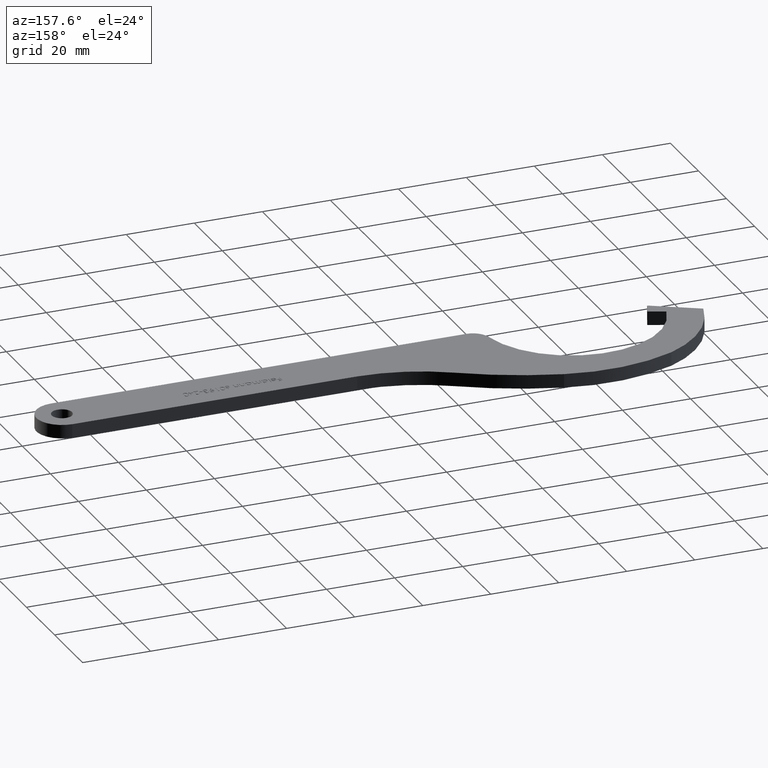
[diagram: clean part render]
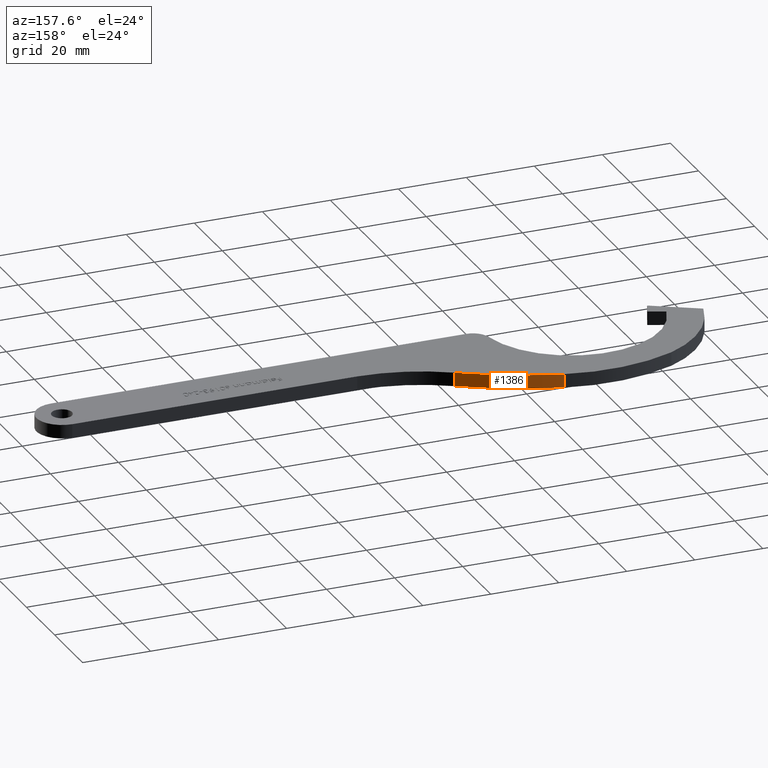
[diagram: same view with one face highlighted and labeled with its STEP entity id]
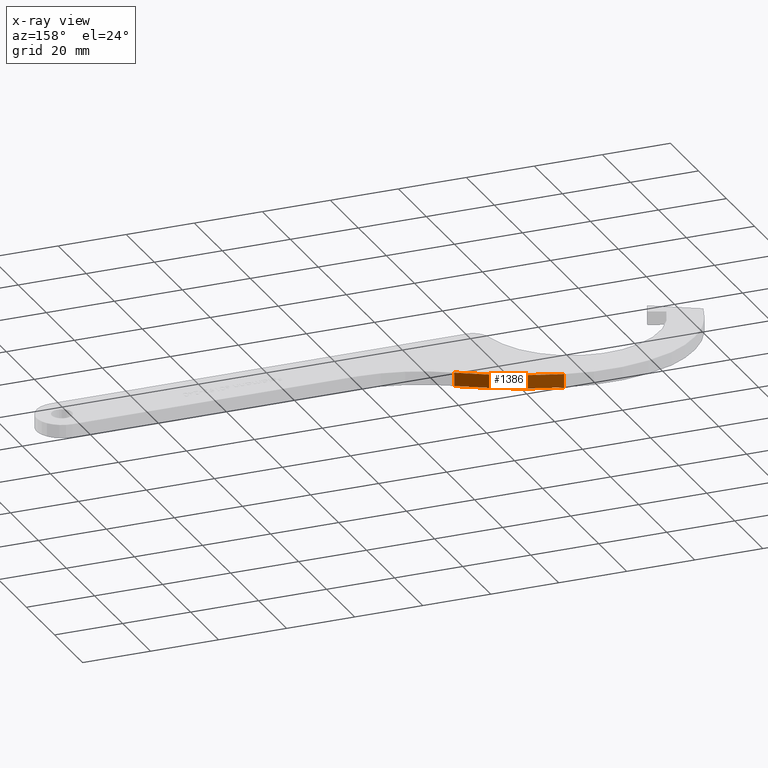
[diagram: x-ray of the same camera — body ghosted, the highlighted face saturated]
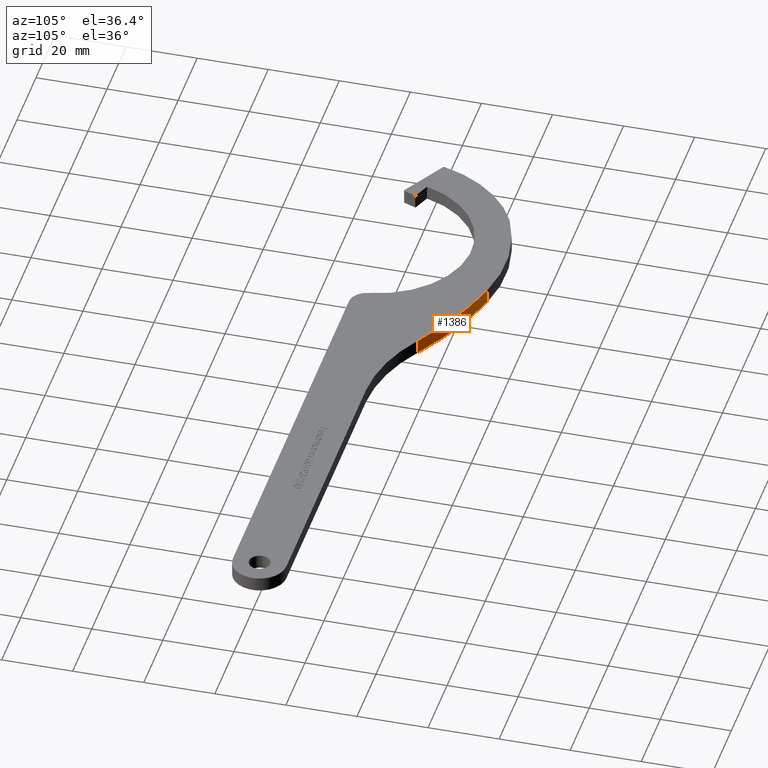
[diagram: same view with one face highlighted and labeled with its STEP entity id]
A machine part, auxiliary view. The second image highlights one B-rep face of the part: STEP entity #1386.
The next image is the same camera in x-ray: the body ghosted, the highlighted face saturated — about 0% of this face is hidden behind the body in this view.
A second angle (auxiliary view) of the same face is appended — the face is thin or edge-on in the first view.
In plain terms, the highlighted cylindrical surface (partial cylindrical patch) has radius 95.4805 mm, axis along (-0, -0, -1).
Its self-contained STEP definition (entity closure, byte-faithful):
#43 = CARTESIAN_POINT ( 'NONE',  ( 51.48575686670986300, 26.17698984142013400, 4.000000000000000000 ) ) ;
#137 = CARTESIAN_POINT ( 'NONE',  ( 26.34783847810916100, -65.93498089354804400, 4.000000000000000000 ) ) ;
#1346 = CARTESIAN_POINT ( 'NONE',  ( 51.48575686670986300, 26.17698984142013400, 4.000000000000000000 ) ) ;
#1386 = ADVANCED_FACE ( 'NONE', ( #2235 ), #12756, .T. ) ;
#1440 = VERTEX_POINT ( 'NONE', #10319 ) ;
#1671 = CARTESIAN_POINT ( 'NONE',  ( 26.34783847810916100, -65.93498089354804400, 4.000000000000000000 ) ) ;
#2124 = EDGE_CURVE ( 'NONE', #12696, #10125, #3677, .T. ) ;
#2235 = FACE_OUTER_BOUND ( 'NONE', #10373, .T. ) ;
#2370 = AXIS2_PLACEMENT_3D ( 'NONE', #1671, #9848, #4896 ) ;
#2870 = EDGE_CURVE ( 'NONE', #4285, #12696, #4774, .T. ) ;
#3677 = LINE ( 'NONE', #43, #7189 ) ;
#4227 = ORIENTED_EDGE ( 'NONE', *, *, #2870, .F. ) ;
#4285 = VERTEX_POINT ( 'NONE', #11223 ) ;
#4774 = CIRCLE ( 'NONE', #2370, 95.48052206388266000 ) ;
#4793 = DIRECTION ( 'NONE',  ( -0.0000000000000000000, -0.0000000000000000000, -1.000000000000000000 ) ) ;
#4896 = DIRECTION ( 'NONE',  ( 1.000000000000000000, 0.0000000000000000000, 0.0000000000000000000 ) ) ;
#5506 = CIRCLE ( 'NONE', #9909, 95.48052206388266000 ) ;
#6066 = EDGE_CURVE ( 'NONE', #4285, #1440, #10646, .T. ) ;
#7189 = VECTOR ( 'NONE', #9334, 1000.000000000000000 ) ;
#7288 = ORIENTED_EDGE ( 'NONE', *, *, #8255, .T. ) ;
#7801 = ORIENTED_EDGE ( 'NONE', *, *, #2124, .F. ) ;
#8255 = EDGE_CURVE ( 'NONE', #1440, #10125, #5506, .T. ) ;
#8268 = DIRECTION ( 'NONE',  ( -1.000000000000000000, 0.0000000000000000000, 0.0000000000000000000 ) ) ;
#8307 = DIRECTION ( 'NONE',  ( -0.0000000000000000000, -0.0000000000000000000, -1.000000000000000000 ) ) ;
#8384 = DIRECTION ( 'NONE',  ( 0.0000000000000000000, 0.0000000000000000000, 1.000000000000000000 ) ) ;
#8877 = DIRECTION ( 'NONE',  ( 1.000000000000000000, 0.0000000000000000000, 0.0000000000000000000 ) ) ;
#8899 = CARTESIAN_POINT ( 'NONE',  ( 51.48575686670986300, 26.17698984142013400, 0.0000000000000000000 ) ) ;
#9334 = DIRECTION ( 'NONE',  ( -0.0000000000000000000, -0.0000000000000000000, -1.000000000000000000 ) ) ;
#9532 = VECTOR ( 'NONE', #4793, 1000.000000000000000 ) ;
#9848 = DIRECTION ( 'NONE',  ( 0.0000000000000000000, 0.0000000000000000000, 1.000000000000000000 ) ) ;
#9909 = AXIS2_PLACEMENT_3D ( 'NONE', #12555, #8384, #8877 ) ;
#10125 = VERTEX_POINT ( 'NONE', #8899 ) ;
#10319 = CARTESIAN_POINT ( 'NONE',  ( 78.67680360765909600, 13.92871237230293400, 0.0000000000000000000 ) ) ;
#10335 = ORIENTED_EDGE ( 'NONE', *, *, #6066, .T. ) ;
#10373 = EDGE_LOOP ( 'NONE', ( #7288, #7801, #4227, #10335 ) ) ;
#10646 = LINE ( 'NONE', #12932, #9532 ) ;
#10664 = AXIS2_PLACEMENT_3D ( 'NONE', #137, #8307, #8268 ) ;
#11223 = CARTESIAN_POINT ( 'NONE',  ( 78.67680360765909600, 13.92871237230293400, 4.000000000000000000 ) ) ;
#12555 = CARTESIAN_POINT ( 'NONE',  ( 26.34783847810916100, -65.93498089354804400, 0.0000000000000000000 ) ) ;
#12696 = VERTEX_POINT ( 'NONE', #1346 ) ;
#12756 = CYLINDRICAL_SURFACE ( 'NONE', #10664, 95.48052206388266000 ) ;
#12932 = CARTESIAN_POINT ( 'NONE',  ( 78.67680360765909600, 13.92871237230293400, 4.000000000000000000 ) ) ;